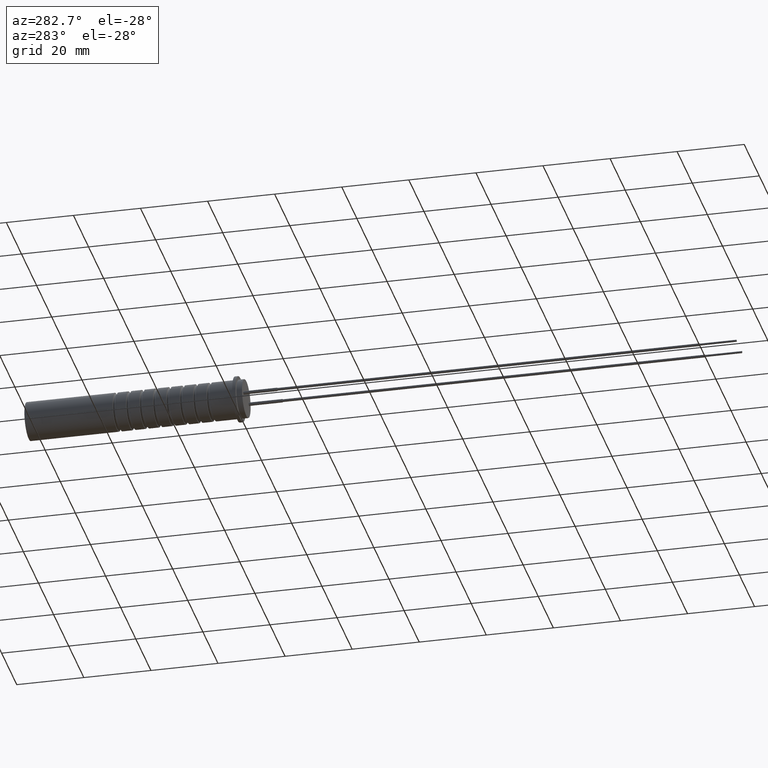
[diagram: clean part render]
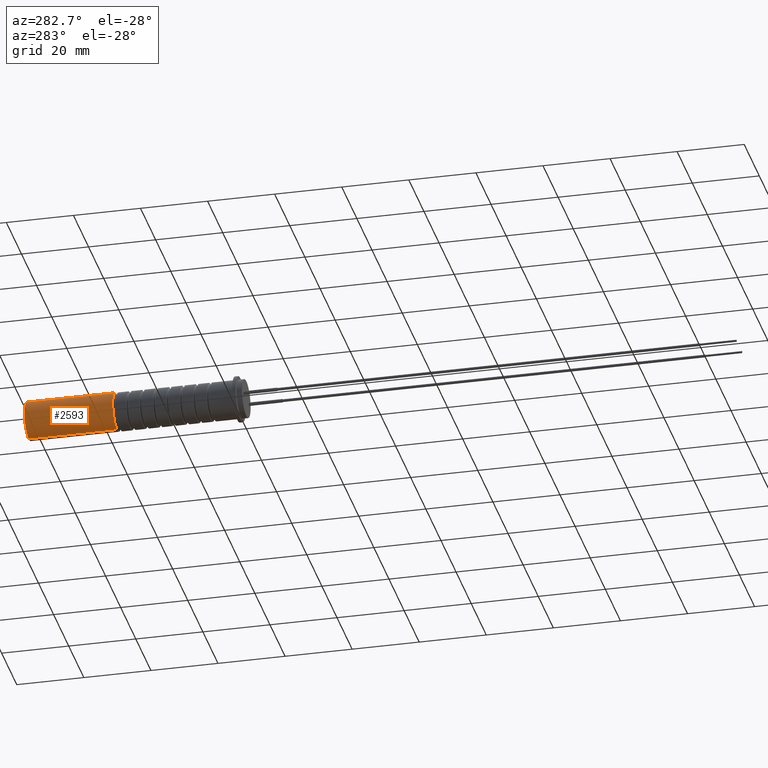
[diagram: same view with one face highlighted and labeled with its STEP entity id]
A machine part, auxiliary view. The second image highlights one B-rep face of the part: STEP entity #2593.
In plain terms, the highlighted cylindrical surface (edge-blend (fillet) strip) has radius 5.7 mm, axis along (-0, -1, -0).
Its self-contained STEP definition (entity closure, byte-faithful):
#561 = LINE ( 'NONE', #3475, #2783 ) ;
#896 = EDGE_CURVE ( 'NONE', #4121, #3003, #561, .T. ) ;
#929 = DIRECTION ( 'NONE',  ( -0.0000000000000000000, -1.000000000000000000, -0.0000000000000000000 ) ) ;
#1212 = CIRCLE ( 'NONE', #1988, 5.700000000000000200 ) ;
#1289 = CARTESIAN_POINT ( 'NONE',  ( 6.980486755139912100E-016, 64.90000000000000600, 5.700000000000000200 ) ) ;
#1345 = CARTESIAN_POINT ( 'NONE',  ( 0.0000000000000000000, 64.90000000000000600, 0.0000000000000000000 ) ) ;
#1658 = DIRECTION ( 'NONE',  ( 0.0000000000000000000, 1.000000000000000000, 0.0000000000000000000 ) ) ;
#1710 = CARTESIAN_POINT ( 'NONE',  ( 0.0000000000000000000, 38.55965999999999400, -5.700000000000000200 ) ) ;
#1755 = CYLINDRICAL_SURFACE ( 'NONE', #4236, 5.700000000000000200 ) ;
#1764 = DIRECTION ( 'NONE',  ( -0.0000000000000000000, -1.000000000000000000, -0.0000000000000000000 ) ) ;
#1863 = FACE_OUTER_BOUND ( 'NONE', #4076, .T. ) ;
#1939 = VERTEX_POINT ( 'NONE', #2431 ) ;
#1988 = AXIS2_PLACEMENT_3D ( 'NONE', #2383, #929, #4314 ) ;
#2080 = DIRECTION ( 'NONE',  ( -0.0000000000000000000, -1.000000000000000000, -0.0000000000000000000 ) ) ;
#2383 = CARTESIAN_POINT ( 'NONE',  ( 0.0000000000000000000, 38.55965999999999400, 0.0000000000000000000 ) ) ;
#2431 = CARTESIAN_POINT ( 'NONE',  ( 6.980486755139913100E-016, 38.55965999999999400, 5.700000000000000200 ) ) ;
#2551 = CARTESIAN_POINT ( 'NONE',  ( 0.0000000000000000000, 64.90000000000000600, 0.0000000000000000000 ) ) ;
#2593 = ADVANCED_FACE ( 'NONE', ( #1863 ), #1755, .T. ) ;
#2783 = VECTOR ( 'NONE', #4328, 1000.000000000000000 ) ;
#2784 = DIRECTION ( 'NONE',  ( 0.0000000000000000000, 0.0000000000000000000, 1.000000000000000000 ) ) ;
#2896 = VERTEX_POINT ( 'NONE', #1289 ) ;
#3003 = VERTEX_POINT ( 'NONE', #1710 ) ;
#3082 = ORIENTED_EDGE ( 'NONE', *, *, #4355, .F. ) ;
#3107 = AXIS2_PLACEMENT_3D ( 'NONE', #1345, #1658, #2784 ) ;
#3112 = ORIENTED_EDGE ( 'NONE', *, *, #3491, .F. ) ;
#3169 = LINE ( 'NONE', #3957, #4822 ) ;
#3475 = CARTESIAN_POINT ( 'NONE',  ( 0.0000000000000000000, 64.90000000000000600, -5.700000000000000200 ) ) ;
#3491 = EDGE_CURVE ( 'NONE', #1939, #3003, #1212, .T. ) ;
#3946 = CIRCLE ( 'NONE', #3107, 5.700000000000000200 ) ;
#3957 = CARTESIAN_POINT ( 'NONE',  ( 6.980486755139912100E-016, 64.90000000000000600, 5.700000000000000200 ) ) ;
#4076 = EDGE_LOOP ( 'NONE', ( #4316, #3082, #4464, #3112 ) ) ;
#4121 = VERTEX_POINT ( 'NONE', #4884 ) ;
#4236 = AXIS2_PLACEMENT_3D ( 'NONE', #2551, #1764, #4442 ) ;
#4314 = DIRECTION ( 'NONE',  ( 0.0000000000000000000, 0.0000000000000000000, -1.000000000000000000 ) ) ;
#4316 = ORIENTED_EDGE ( 'NONE', *, *, #4727, .F. ) ;
#4328 = DIRECTION ( 'NONE',  ( -0.0000000000000000000, -1.000000000000000000, -0.0000000000000000000 ) ) ;
#4355 = EDGE_CURVE ( 'NONE', #4121, #2896, #3946, .T. ) ;
#4442 = DIRECTION ( 'NONE',  ( 0.0000000000000000000, 0.0000000000000000000, -1.000000000000000000 ) ) ;
#4464 = ORIENTED_EDGE ( 'NONE', *, *, #896, .T. ) ;
#4727 = EDGE_CURVE ( 'NONE', #2896, #1939, #3169, .T. ) ;
#4822 = VECTOR ( 'NONE', #2080, 1000.000000000000000 ) ;
#4884 = CARTESIAN_POINT ( 'NONE',  ( 0.0000000000000000000, 64.90000000000000600, -5.700000000000000200 ) ) ;